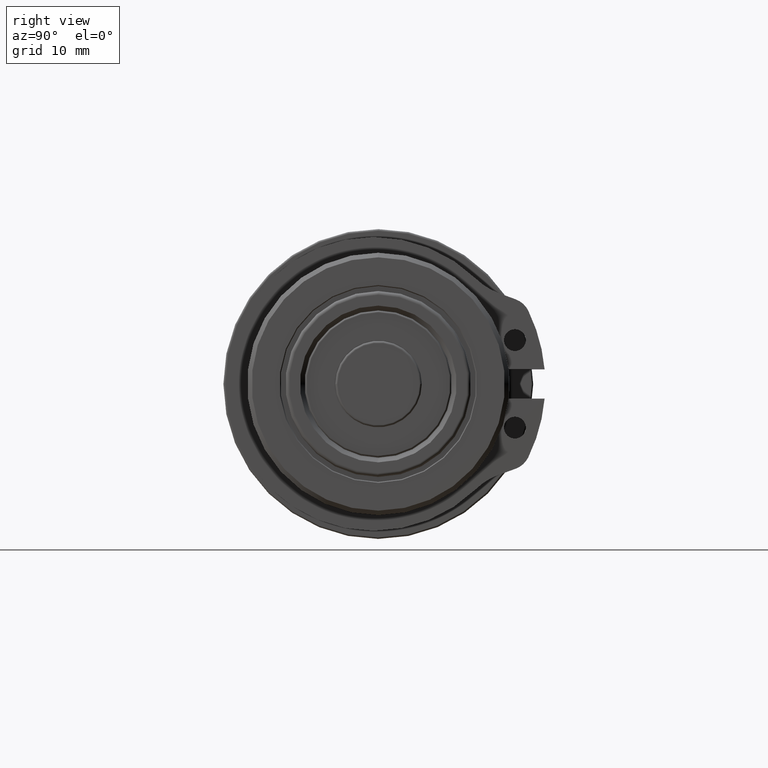
[diagram: clean part render]
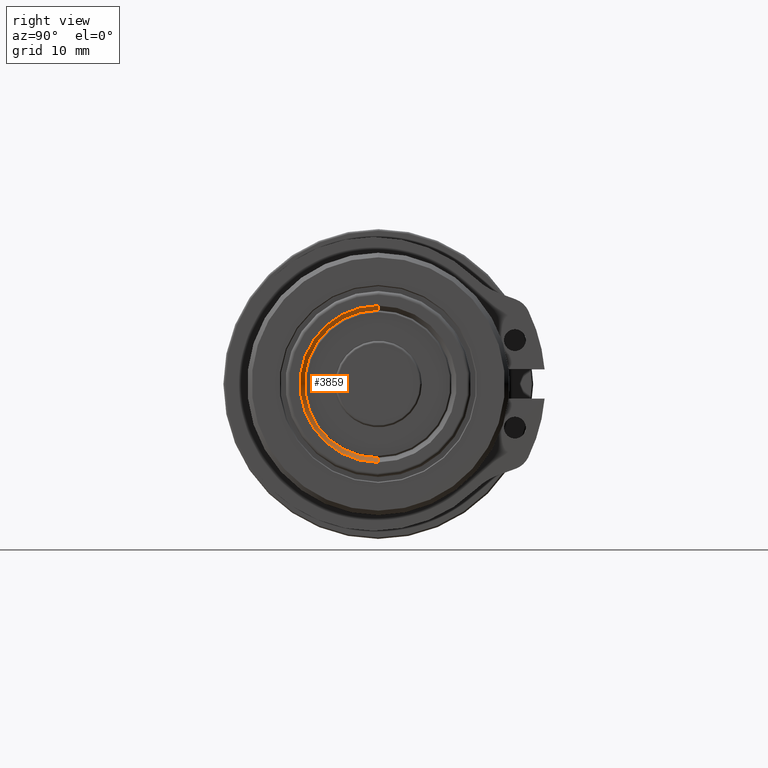
[diagram: same view with one face highlighted and labeled with its STEP entity id]
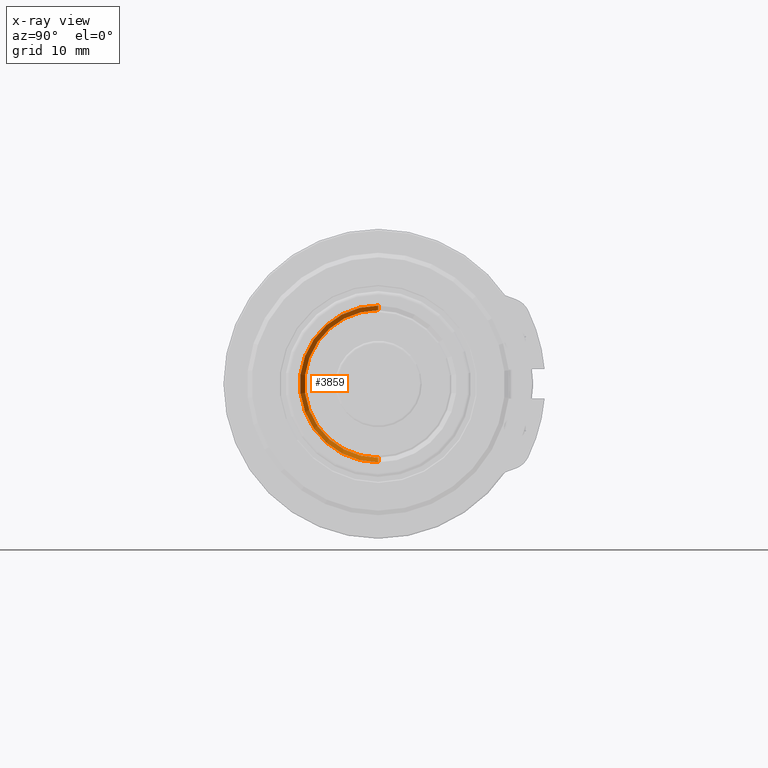
[diagram: x-ray of the same camera — body ghosted, the highlighted face saturated]
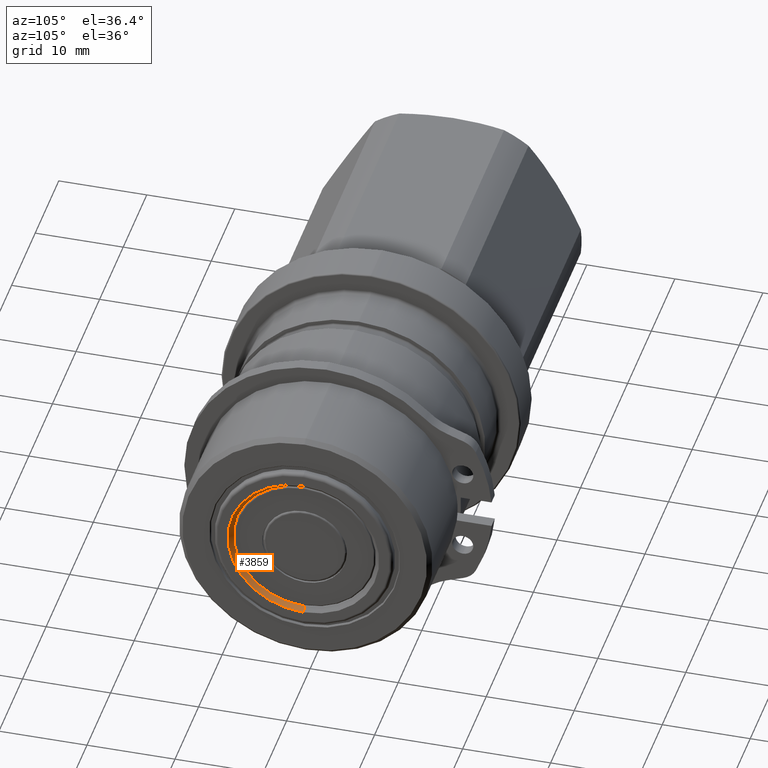
[diagram: same view with one face highlighted and labeled with its STEP entity id]
A machine part, right view. The second image highlights one B-rep face of the part: STEP entity #3859.
The next image is the same camera in x-ray: the body ghosted, the highlighted face saturated — about 0% of this face is hidden behind the body in this view.
A second angle (auxiliary view) of the same face is appended — the face is thin or edge-on in the first view.
In plain terms, the highlighted conical surface has half-angle 45 deg.
Its self-contained STEP definition (entity closure, byte-faithful):
#679 = FACE_OUTER_BOUND ( 'NONE', #1301, .T. ) ;
#680 = CONICAL_SURFACE ( 'NONE', #957, 8.100000000000005000, 0.7853981633974447300 ) ;
#788 = AXIS2_PLACEMENT_3D ( 'NONE', #2843, #2806, #2815 ) ;
#790 = AXIS2_PLACEMENT_3D ( 'NONE', #4050, #4055, #4058 ) ;
#957 = AXIS2_PLACEMENT_3D ( 'NONE', #2562, #2514, #2258 ) ;
#1186 = LINE ( 'NONE', #2809, #1188 ) ;
#1188 = VECTOR ( 'NONE', #2801, 1000.000000000000100 ) ;
#1191 = CIRCLE ( 'NONE', #788, 8.100000000000005000 ) ;
#1193 = CIRCLE ( 'NONE', #790, 8.600000000000008500 ) ;
#1199 = LINE ( 'NONE', #4066, #1200 ) ;
#1200 = VECTOR ( 'NONE', #4060, 1000.000000000000100 ) ;
#1301 = EDGE_LOOP ( 'NONE', ( #3405, #3407, #3448, #3422 ) ) ;
#2258 = DIRECTION ( 'NONE',  ( 0.0000000000000000000, 0.0000000000000000000, -1.000000000000000000 ) ) ;
#2514 = DIRECTION ( 'NONE',  ( 1.000000000000000000, 0.0000000000000000000, 0.0000000000000000000 ) ) ;
#2562 = CARTESIAN_POINT ( 'NONE',  ( 62.19999999999998900, -0.02927498360197964400, 0.0000000000000000000 ) ) ;
#2774 = CARTESIAN_POINT ( 'NONE',  ( 62.70000000000000300, -0.02927498360197964400, -8.600000000000015600 ) ) ;
#2801 = DIRECTION ( 'NONE',  ( 0.7071067811865500200, 8.659560562354904500E-017, 0.7071067811865451300 ) ) ;
#2806 = DIRECTION ( 'NONE',  ( 1.000000000000000000, 0.0000000000000000000, 0.0000000000000000000 ) ) ;
#2809 = CARTESIAN_POINT ( 'NONE',  ( 62.19999999999998900, -0.02927498360197865200, 8.100000000000005000 ) ) ;
#2815 = DIRECTION ( 'NONE',  ( 0.0000000000000000000, 0.0000000000000000000, 1.000000000000000000 ) ) ;
#2843 = CARTESIAN_POINT ( 'NONE',  ( 62.19999999999998900, -0.02927498360197964400, 0.0000000000000000000 ) ) ;
#3315 = EDGE_CURVE ( 'NONE', #4303, #4320, #1186, .T. ) ;
#3317 = EDGE_CURVE ( 'NONE', #4303, #4169, #1191, .T. ) ;
#3319 = EDGE_CURVE ( 'NONE', #4136, #4320, #1193, .T. ) ;
#3325 = EDGE_CURVE ( 'NONE', #4169, #4136, #1199, .T. ) ;
#3405 = ORIENTED_EDGE ( 'NONE', *, *, #3317, .F. ) ;
#3407 = ORIENTED_EDGE ( 'NONE', *, *, #3315, .T. ) ;
#3422 = ORIENTED_EDGE ( 'NONE', *, *, #3325, .F. ) ;
#3448 = ORIENTED_EDGE ( 'NONE', *, *, #3319, .F. ) ;
#3632 = CARTESIAN_POINT ( 'NONE',  ( 62.70000000000000300, -0.02927498360197858900, 8.600000000000015600 ) ) ;
#3647 = CARTESIAN_POINT ( 'NONE',  ( 62.19999999999998900, -0.02927498360197865200, 8.100000000000005000 ) ) ;
#3859 = ADVANCED_FACE ( 'NONE', ( #679 ), #680, .F. ) ;
#3965 = CARTESIAN_POINT ( 'NONE',  ( 62.19999999999998900, -0.02927498360197964400, -8.100000000000005000 ) ) ;
#4050 = CARTESIAN_POINT ( 'NONE',  ( 62.70000000000000300, -0.02927498360197964400, 0.0000000000000000000 ) ) ;
#4055 = DIRECTION ( 'NONE',  ( -1.000000000000000000, 0.0000000000000000000, 0.0000000000000000000 ) ) ;
#4058 = DIRECTION ( 'NONE',  ( 0.0000000000000000000, 0.0000000000000000000, 1.000000000000000000 ) ) ;
#4060 = DIRECTION ( 'NONE',  ( 0.7071067811865500200, 0.0000000000000000000, -0.7071067811865451300 ) ) ;
#4066 = CARTESIAN_POINT ( 'NONE',  ( 62.19999999999998900, -0.02927498360197964400, -8.100000000000005000 ) ) ;
#4136 = VERTEX_POINT ( 'NONE', #2774 ) ;
#4169 = VERTEX_POINT ( 'NONE', #3965 ) ;
#4303 = VERTEX_POINT ( 'NONE', #3647 ) ;
#4320 = VERTEX_POINT ( 'NONE', #3632 ) ;